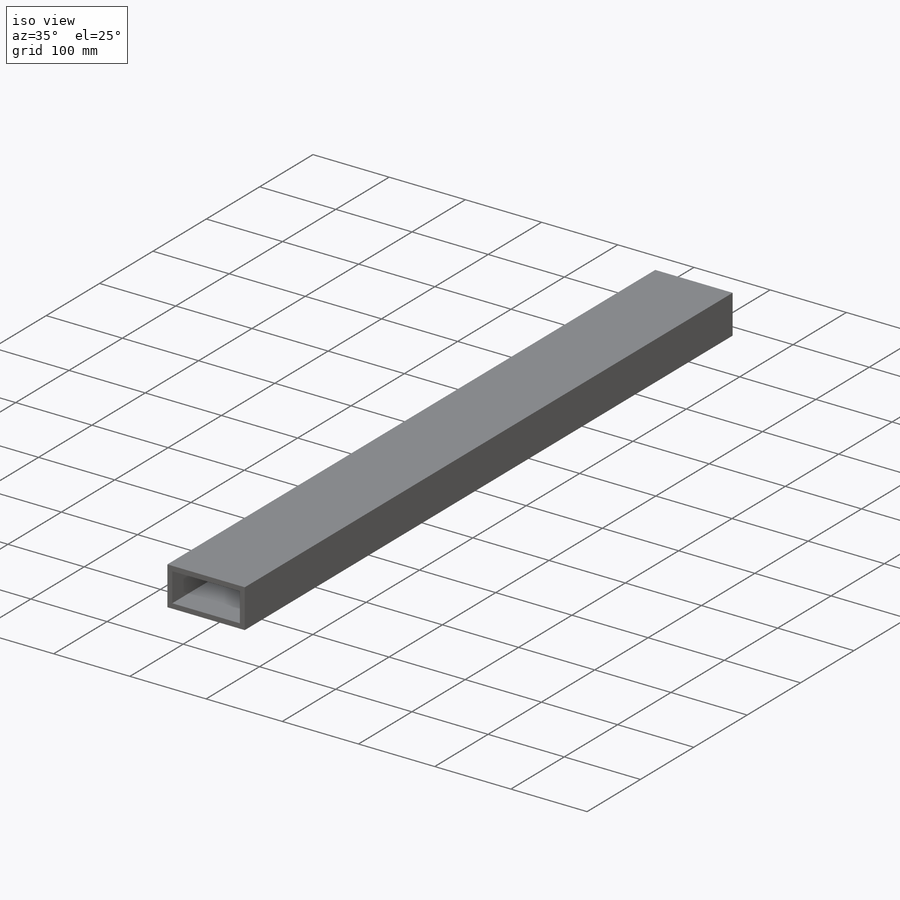
[diagram: iso view]
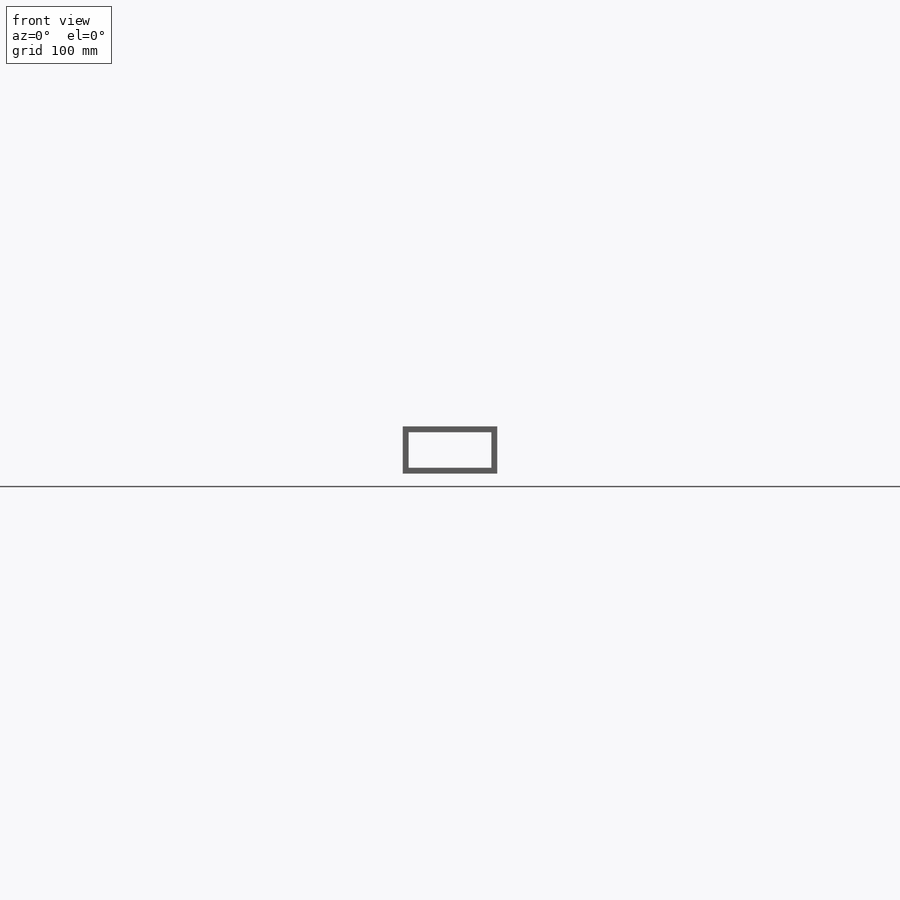
[diagram: front view]
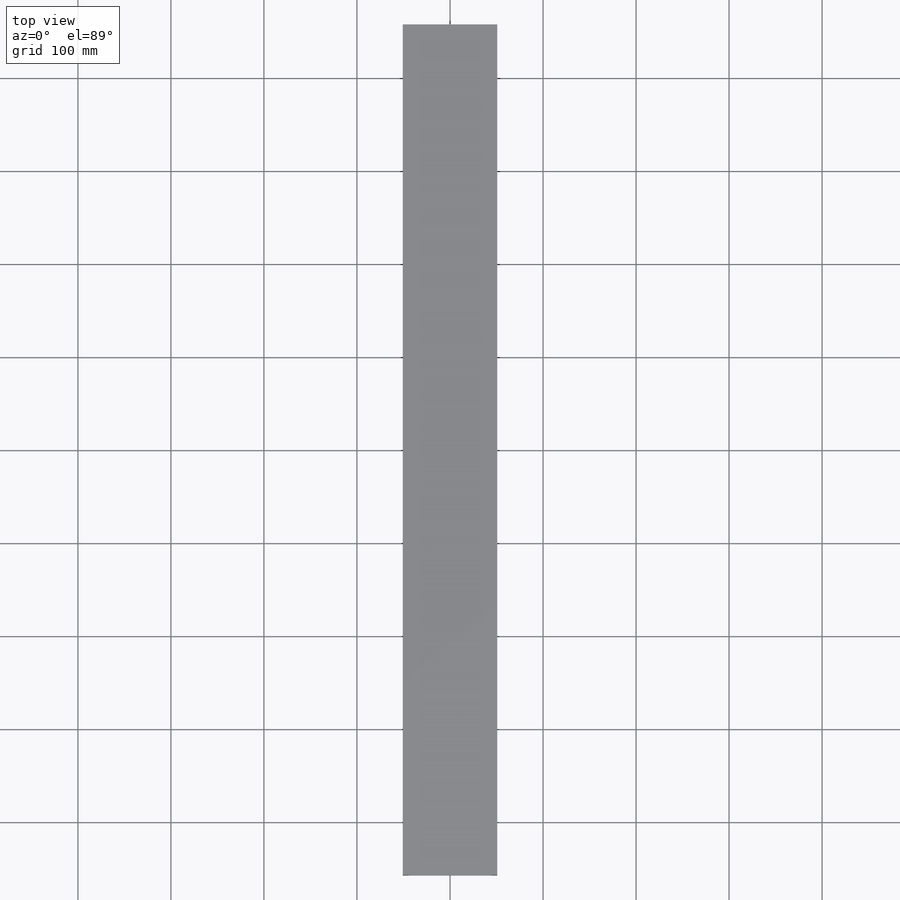
[diagram: top view]
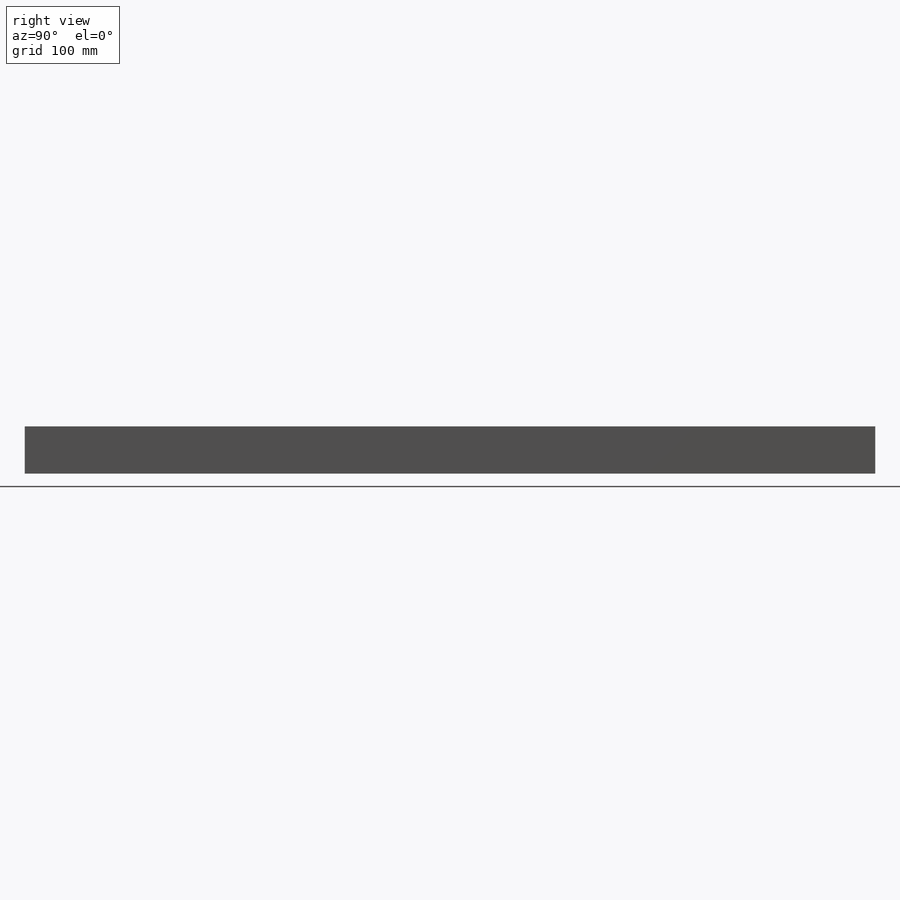
[diagram: right view]
SOLIDWORKS PART (.sldprt)
format: sldprt  version: not decoded by parser v0  size: 359,424 bytes
history: native  units: mm
features: sketch x3, extrude x2, material x1 (+16 scaffold rows collapsed)
feature tree (22):
  scaffold x16  (default folders/planes/origin — collapsed)
  material  "ASTM A36 Steel"
  sketch  "Sketch1"  dims[c1.D1=6.35mm c1.D2=101.6mm c1.D3=6.35mm c1.D4=6.35mm c2.D3=50.8mm]
  extrude  "Boss-Extrude1"  Depth=914.4mm
  sketch  "Sketch2"  dims[D1=25.4mm]
  sketch  "Sketch4"  dims[D1=25.4mm]
  extrude  "Boss-Extrude3"  Depth=0.0254mm
decode coverage: 5 of 5 modeling features carry decoded parameters
note: suppression state not decoded; provenance and decode notes live in map.json
